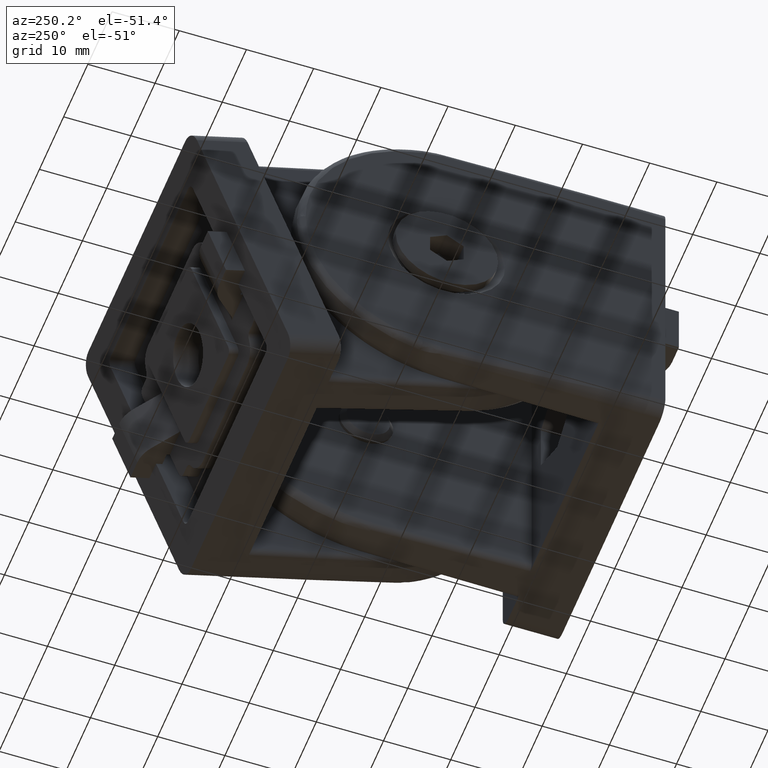
[diagram: clean part render]
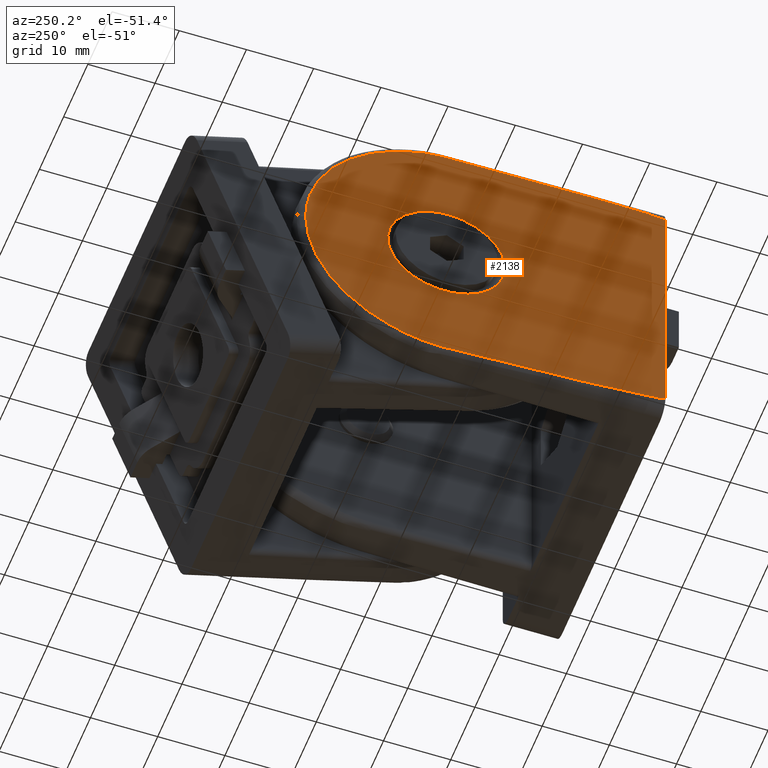
[diagram: same view with one face highlighted and labeled with its STEP entity id]
A machine part, auxiliary view. The second image highlights one B-rep face of the part: STEP entity #2138.
In plain terms, the highlighted planar face has unit normal (0.9997, -0.0262, 0).
Its self-contained STEP definition (entity closure, byte-faithful):
#59=LINE('',#3312,#249);
#80=LINE('',#3489,#270);
#81=LINE('',#3490,#271);
#249=VECTOR('',#2536,40.);
#270=VECTOR('',#2573,0.0414000296418651);
#271=VECTOR('',#2574,0.041400029641764);
#435=PLANE('',#2289);
#500=FACE_BOUND('',#712,.T.);
#517=ELLIPSE('',#2261,8.65785906220649,8.65192438071839);
#582=FACE_OUTER_BOUND('',#711,.T.);
#711=EDGE_LOOP('',(#1553,#1554,#1555,#1556,#1557,#1558,#1559,#1560,#1561));
#712=EDGE_LOOP('',(#1562));
#937=B_SPLINE_CURVE_WITH_KNOTS('',3,(#3245,#3246,#3247,#3248,#3249,#3250,
#3251,#3252,#3253,#3254,#3255,#3256,#3257),.UNSPECIFIED.,.F.,.F.,(4,3,3,
3,4),(0.,0.343515024769679,0.68703004953936,1.03054507430904,1.37406009907872),
 .UNSPECIFIED.);
#940=B_SPLINE_CURVE_WITH_KNOTS('',3,(#3433,#3434,#3435,#3436,#3437,#3438,
#3439,#3440,#3441,#3442,#3443,#3444,#3445),.UNSPECIFIED.,.F.,.F.,(4,3,3,
3,4),(0.0213792905390047,0.303796181903972,0.576731967984389,0.85004531668925,
1.13373998756873),.UNSPECIFIED.);
#941=B_SPLINE_CURVE_WITH_KNOTS('',3,(#3447,#3448,#3449,#3450,#3451,#3452,
#3453),.UNSPECIFIED.,.F.,.F.,(4,3,4),(0.,0.00134844635158802,0.00269528262630313),
 .UNSPECIFIED.);
#942=B_SPLINE_CURVE_WITH_KNOTS('',3,(#3454,#3455,#3456,#3457,#3458,#3459,
#3460,#3461,#3462,#3463,#3464,#3465,#3466),.UNSPECIFIED.,.F.,.F.,(4,3,3,
3,4),(4.90912520810087,5.25264023287055,5.59615525764023,5.93967028240991,
6.28318530717959),.UNSPECIFIED.);
#943=B_SPLINE_CURVE_WITH_KNOTS('',3,(#3468,#3469,#3470,#3471,#3472,#3473,
#3474),.UNSPECIFIED.,.F.,.F.,(4,3,4),(2.16840434497101E-19,0.00134578005031071,
0.00269584533889386),.UNSPECIFIED.);
#944=B_SPLINE_CURVE_WITH_KNOTS('',3,(#3476,#3477,#3478,#3479,#3480,#3481,
#3482,#3483,#3484,#3485,#3486,#3487,#3488),.UNSPECIFIED.,.F.,.F.,(4,3,3,
3,4),(5.1494453196105,5.43313999049106,5.70645333919743,5.97938912527825,
6.26180601664055),.UNSPECIFIED.);
#961=VERTEX_POINT('',#3203);
#965=VERTEX_POINT('',#3243);
#966=VERTEX_POINT('',#3244);
#979=VERTEX_POINT('',#3296);
#986=VERTEX_POINT('',#3310);
#1007=VERTEX_POINT('',#3431);
#1008=VERTEX_POINT('',#3432);
#1009=VERTEX_POINT('',#3446);
#1010=VERTEX_POINT('',#3467);
#1011=VERTEX_POINT('',#3475);
#1171=EDGE_CURVE('',#961,#961,#517,.T.);
#1175=EDGE_CURVE('',#965,#966,#937,.T.);
#1198=EDGE_CURVE('',#986,#979,#59,.T.);
#1227=EDGE_CURVE('',#1007,#1008,#940,.T.);
#1228=EDGE_CURVE('',#1008,#1009,#941,.T.);
#1229=EDGE_CURVE('',#1009,#965,#942,.T.);
#1230=EDGE_CURVE('',#966,#1010,#943,.T.);
#1231=EDGE_CURVE('',#1010,#1011,#944,.T.);
#1232=EDGE_CURVE('',#1011,#979,#80,.T.);
#1233=EDGE_CURVE('',#986,#1007,#81,.T.);
#1553=ORIENTED_EDGE('',*,*,#1227,.T.);
#1554=ORIENTED_EDGE('',*,*,#1228,.T.);
#1555=ORIENTED_EDGE('',*,*,#1229,.T.);
#1556=ORIENTED_EDGE('',*,*,#1175,.T.);
#1557=ORIENTED_EDGE('',*,*,#1230,.T.);
#1558=ORIENTED_EDGE('',*,*,#1231,.T.);
#1559=ORIENTED_EDGE('',*,*,#1232,.T.);
#1560=ORIENTED_EDGE('',*,*,#1198,.F.);
#1561=ORIENTED_EDGE('',*,*,#1233,.T.);
#1562=ORIENTED_EDGE('',*,*,#1171,.F.);
#2138=ADVANCED_FACE('',(#582,#500),#435,.F.);
#2261=AXIS2_PLACEMENT_3D('',#3204,#2485,#2486);
#2289=AXIS2_PLACEMENT_3D('',#3430,#2571,#2572);
#2485=DIRECTION('center_axis',(-0.999657324975557,0.0261769483078732,0.));
#2486=DIRECTION('ref_axis',(0.0261769483078732,0.999657324975557,4.25165061626543E-13));
#2536=DIRECTION('',(0.,0.,-1.));
#2571=DIRECTION('center_axis',(0.999657324975557,-0.0261769483078732,0.));
#2572=DIRECTION('ref_axis',(0.0261769483078744,0.999657324975557,0.));
#2573=DIRECTION('',(-0.016557174505295,-0.632292984675332,0.774552413657566));
#2574=DIRECTION('',(0.0165571745053305,0.632292984674879,0.774552413657935));
#3203=CARTESIAN_POINT('',(-21.6489575490014,32.5,31.1489575490014));
#3204=CARTESIAN_POINT('Origin',(-21.6548922301407,32.2733636708718,22.5));
#3243=CARTESIAN_POINT('',(-21.1114606893178,53.0261769483079,22.5));
#3244=CARTESIAN_POINT('',(-21.5644091634887,35.7287725787834,1.41473998342188));
#3245=CARTESIAN_POINT('Ctrl Pts',(-21.1114606893178,53.0261769483079,22.5));
#3246=CARTESIAN_POINT('Ctrl Pts',(-21.1114606893178,53.026176948308,20.0378818874206));
#3247=CARTESIAN_POINT('Ctrl Pts',(-21.1226408130282,52.599225249057,17.5768527815696));
#3248=CARTESIAN_POINT('Ctrl Pts',(-21.1443528905296,51.7700744611412,15.2588251305536));
#3249=CARTESIAN_POINT('Ctrl Pts',(-21.166064968031,50.9409236732253,12.9407974795376));
#3250=CARTESIAN_POINT('Ctrl Pts',(-21.1982989781202,49.7099564909539,10.7671016042559));
#3251=CARTESIAN_POINT('Ctrl Pts',(-21.2391861475836,48.1485384841309,8.86375796003937));
#3252=CARTESIAN_POINT('Ctrl Pts',(-21.280073317047,46.587120477308,6.96041431582288));
#3253=CARTESIAN_POINT('Ctrl Pts',(-21.3295947744228,44.695972317982,5.3283013903449));
#3254=CARTESIAN_POINT('Ctrl Pts',(-21.3848795032656,42.5847337008202,4.06204125854858));
#3255=CARTESIAN_POINT('Ctrl Pts',(-21.4401642321084,40.4734950836583,2.79578112675226));
#3256=CARTESIAN_POINT('Ctrl Pts',(-21.5011800223851,38.1433960602024,1.89600917736556));
#3257=CARTESIAN_POINT('Ctrl Pts',(-21.5644091634887,35.7287725787834,1.41473998342187));
#3296=CARTESIAN_POINT('',(-22.5,0.,2.50000000000001));
#3310=CARTESIAN_POINT('',(-22.5,0.,42.5));
#3312=CARTESIAN_POINT('',(-22.5,0.,45.));
#3430=CARTESIAN_POINT('Origin',(-22.5,0.,0.));
#3431=CARTESIAN_POINT('',(-22.4993145324847,0.02617694830781,42.5320664928845));
#3432=CARTESIAN_POINT('',(-21.6345688372559,33.0494827328289,43.859002344212));
#3433=CARTESIAN_POINT('Ctrl Pts',(-22.4993145324847,0.0261769483078172,
42.5320664928846));
#3434=CARTESIAN_POINT('Ctrl Pts',(-22.4964490693002,0.135604572494329,42.6660759254996));
#3435=CARTESIAN_POINT('Ctrl Pts',(-22.4748904735183,0.958894130015948,42.8065110669955));
#3436=CARTESIAN_POINT('Ctrl Pts',(-22.4328970327947,2.56255893182903,42.9425199902006));
#3437=CARTESIAN_POINT('Ctrl Pts',(-22.3923133669286,4.1123866038811,43.0739629155495));
#3438=CARTESIAN_POINT('Ctrl Pts',(-22.3326476078927,6.39093001424921,43.2018998911725));
#3439=CARTESIAN_POINT('Ctrl Pts',(-22.2563536261038,9.30447963240097,43.3189715577002));
#3440=CARTESIAN_POINT('Ctrl Pts',(-22.1799541039005,12.2220596763759,43.43620517399));
#3441=CARTESIAN_POINT('Ctrl Pts',(-22.0869625627287,15.7732633613817,43.5424190887683));
#3442=CARTESIAN_POINT('Ctrl Pts',(-21.9832493864784,19.7339097711816,43.6324957663955));
#3443=CARTESIAN_POINT('Ctrl Pts',(-21.875596849412,23.8449943011637,43.7259938466557));
#3444=CARTESIAN_POINT('Ctrl Pts',(-21.7565587960551,28.3908741565808,43.8020099265366));
#3445=CARTESIAN_POINT('Ctrl Pts',(-21.6345688372559,33.0494827328289,43.859002344212));
#3446=CARTESIAN_POINT('',(-21.5644091634887,35.7287725787834,43.5852600165781));
#3447=CARTESIAN_POINT('Ctrl Pts',(-21.6345688372559,33.0494827328289,43.8590023442133));
#3448=CARTESIAN_POINT('Ctrl Pts',(-21.6227653370103,33.5002402215218,43.8645168146057));
#3449=CARTESIAN_POINT('Ctrl Pts',(-21.6110253804481,33.948571074846,43.8399410368042));
#3450=CARTESIAN_POINT('Ctrl Pts',(-21.5993201507277,34.3955757635857,43.7921828221068));
#3451=CARTESIAN_POINT('Ctrl Pts',(-21.5876288973288,34.8420467181426,43.7444816318486));
#3452=CARTESIAN_POINT('Ctrl Pts',(-21.5759637965856,35.2875189430678,43.6732082161003));
#3453=CARTESIAN_POINT('Ctrl Pts',(-21.5644091634887,35.7287725787834,43.5852600165781));
#3454=CARTESIAN_POINT('Ctrl Pts',(-21.5644091634887,35.7287725787834,43.5852600165781));
#3455=CARTESIAN_POINT('Ctrl Pts',(-21.5011800223851,38.143396060202,43.1039908226242));
#3456=CARTESIAN_POINT('Ctrl Pts',(-21.4401642321085,40.4734950836552,42.2042188732427));
#3457=CARTESIAN_POINT('Ctrl Pts',(-21.3848795032656,42.5847337008202,40.9379587414514));
#3458=CARTESIAN_POINT('Ctrl Pts',(-21.3295947744227,44.6959723179852,39.6716986096601));
#3459=CARTESIAN_POINT('Ctrl Pts',(-21.2800733170466,46.5871204773226,38.0395856841822));
#3460=CARTESIAN_POINT('Ctrl Pts',(-21.2391861475836,48.148538484131,36.1362420399606));
#3461=CARTESIAN_POINT('Ctrl Pts',(-21.1982989781206,49.7099564909394,34.232898395739));
#3462=CARTESIAN_POINT('Ctrl Pts',(-21.1660649680311,50.9409236732223,32.0592025204664));
#3463=CARTESIAN_POINT('Ctrl Pts',(-21.1443528905296,51.7700744611412,29.7411748694464));
#3464=CARTESIAN_POINT('Ctrl Pts',(-21.1226408130281,52.59922524906,27.4231472184263));
#3465=CARTESIAN_POINT('Ctrl Pts',(-21.1114606893178,53.026176948308,24.9621181125824));
#3466=CARTESIAN_POINT('Ctrl Pts',(-21.1114606893178,53.0261769483079,22.5));
#3467=CARTESIAN_POINT('',(-21.6345688372555,33.0494827328478,1.14099765578772));
#3468=CARTESIAN_POINT('Ctrl Pts',(-21.5644091634887,35.7287725787836,1.41473998342068));
#3469=CARTESIAN_POINT('Ctrl Pts',(-21.5759486066012,35.2880990251699,1.32690740346595));
#3470=CARTESIAN_POINT('Ctrl Pts',(-21.5875475499272,34.8451532500779,1.25597458226563));
#3471=CARTESIAN_POINT('Ctrl Pts',(-21.599227727402,34.3991052679985,1.20819475498851));
#3472=CARTESIAN_POINT('Ctrl Pts',(-21.6109450969451,33.9516369781328,1.16026278699236));
#3473=CARTESIAN_POINT('Ctrl Pts',(-21.622757651651,33.5005337135513,1.13547959487729));
#3474=CARTESIAN_POINT('Ctrl Pts',(-21.6345688372555,33.0494827328478,1.14099765578772));
#3475=CARTESIAN_POINT('',(-22.4993145324847,0.0261769483078933,2.4679335071154));
#3476=CARTESIAN_POINT('Ctrl Pts',(-21.6345688372555,33.0494827328478,1.14099765578772));
#3477=CARTESIAN_POINT('Ctrl Pts',(-21.7565587960551,28.3908741565812,1.19799007346404));
#3478=CARTESIAN_POINT('Ctrl Pts',(-21.8755968494118,23.8449943011727,1.27400615334045));
#3479=CARTESIAN_POINT('Ctrl Pts',(-21.9832493864781,19.7339097711936,1.3675042336009));
#3480=CARTESIAN_POINT('Ctrl Pts',(-22.0869625627285,15.7732633613898,1.45758091122858));
#3481=CARTESIAN_POINT('Ctrl Pts',(-22.1799541039,12.2220596763961,1.56379482601137));
#3482=CARTESIAN_POINT('Ctrl Pts',(-22.2563536261037,9.30447963240695,1.68102844229533));
#3483=CARTESIAN_POINT('Ctrl Pts',(-22.3326476078926,6.39093001425291,1.79810010881657));
#3484=CARTESIAN_POINT('Ctrl Pts',(-22.3923133669285,4.11238660388623,1.92603708444899));
#3485=CARTESIAN_POINT('Ctrl Pts',(-22.4328970327947,2.56255893183074,2.05748000979697));
#3486=CARTESIAN_POINT('Ctrl Pts',(-22.4748904735178,0.958894130031601,2.19348893299971));
#3487=CARTESIAN_POINT('Ctrl Pts',(-22.4964490693003,0.135604572493484,2.33392407450161));
#3488=CARTESIAN_POINT('Ctrl Pts',(-22.4993145324847,0.0261769483078932,
2.4679335071154));
#3489=CARTESIAN_POINT('',(-22.4993145324847,0.0261769483078933,2.4679335071154));
#3490=CARTESIAN_POINT('',(-22.5,-2.22763424021249E-17,42.5));